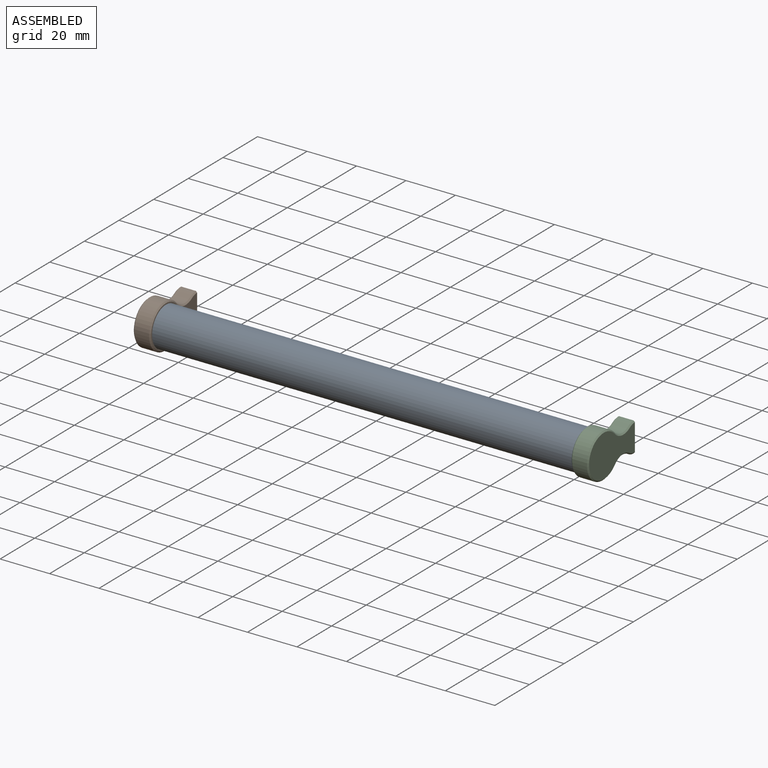
[diagram: assembled view]
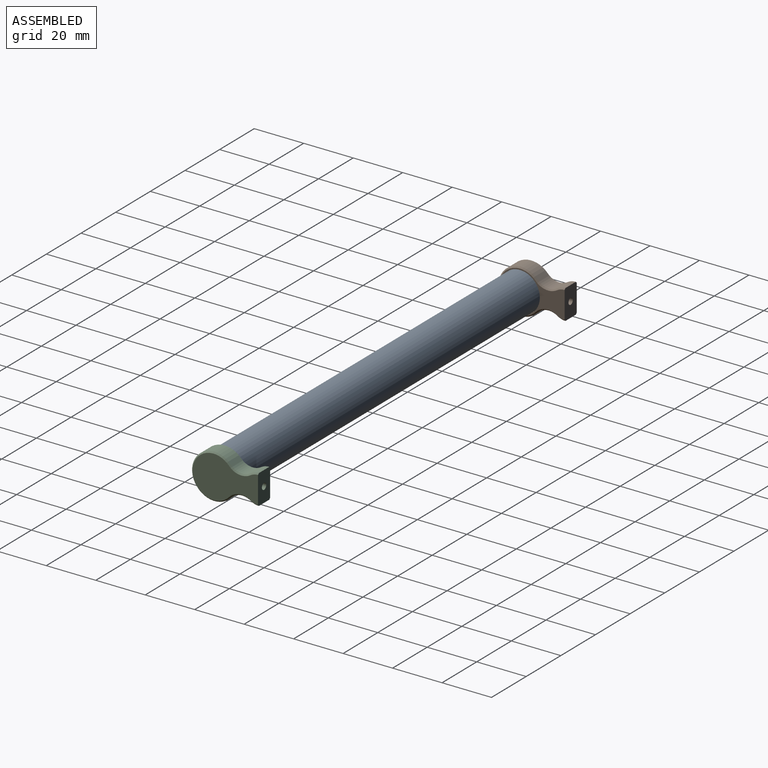
[diagram: assembled view, second angle]
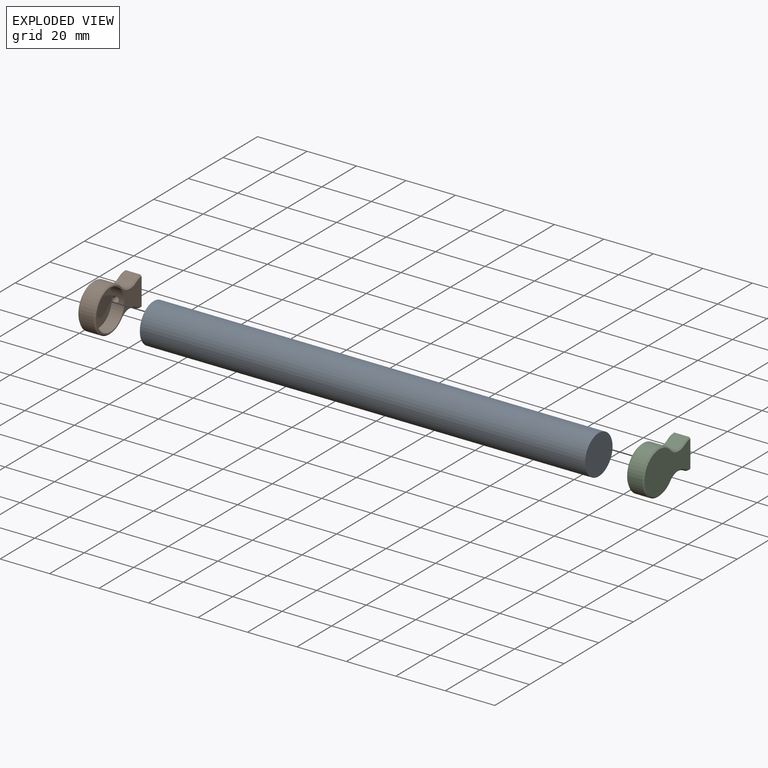
[diagram: exploded view]
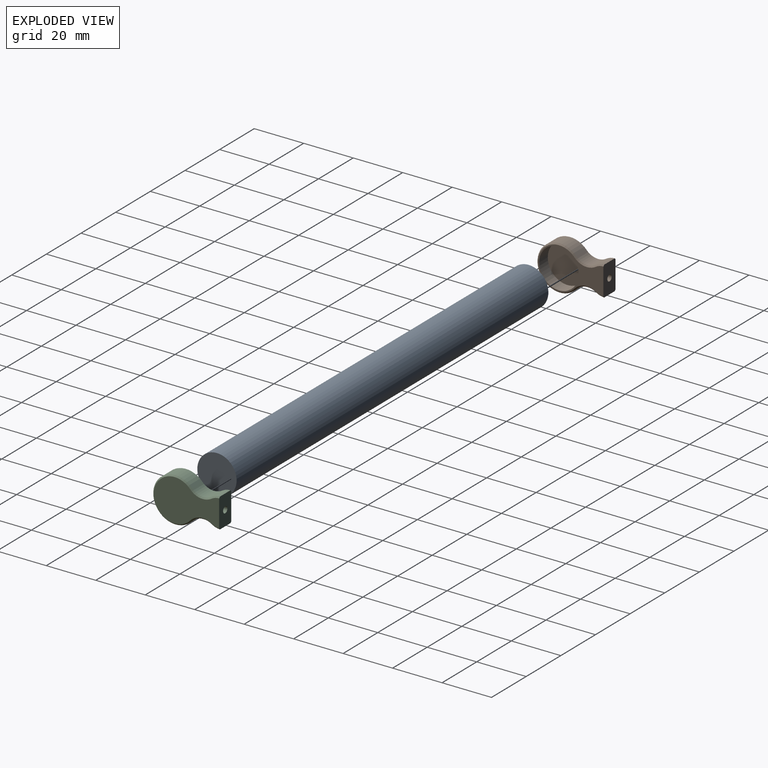
[diagram: exploded view, second angle]
ASSEMBLY  parts=3 mates=2
PART A: 3 faces, bbox 180x15.9x15.9 mm
  f0: plane 15.9x15.9mm, normal (1,0,0), area 198.6mm2, adj f1
  f1: cylinder r=7.95mm len=180mm, axis (1,0,0), area 8991.2mm2, adj f0,f2
  f2: plane 15.9x15.9mm, normal (-1,0,0), area 198.6mm2, adj f1
PART B: 21 faces, bbox 7x18x27 mm
  f0: cylinder r=8mm len=16mm, axis (1,0,0), area 246.4mm2, adj f7,f9,f10
  f1: cylinder r=9mm len=18mm, axis (-1,0,0), area 259.7mm2, adj f2,f6,f13,f18
  f2: cylinder r=6.25mm len=8.05mm, axis (-1,0,0), area 53mm2, adj f1,f3,f12,f17
  f3: cylinder r=6mm len=6mm, axis (-1,0,0), area 20.9mm2, adj f2,f4,f11,f16
  f4: plane 12x7mm, normal (0,0,-1), area 78.6mm2, adj f3,f5,f7,f8,f10,f11,f15,f16
  f5: cylinder r=6mm len=6mm, axis (-1,0,0), area 20.9mm2, adj f4,f6,f15,f20
  f6: cylinder r=6.25mm len=8.05mm, axis (-1,0,0), area 53mm2, adj f1,f5,f14,f19
  f7: plane 26.5x17mm, normal (1,0,0), area 110.3mm2, adj f0,f4,f16,f17,f18,f19,f20
  f8: plane 26.5x17mm, normal (-1,0,0), area 311.4mm2, adj f4,f11,f12,f13,f14,f15
  f9: plane 16x16mm, normal (1,0,0), area 201.1mm2, adj f0
  f10: cylinder r=1.25mm len=10.1mm, axis (0,0,-1), area 78.9mm2, adj f0,f4
  f11: cone r=6mm half-angle=45deg, axis (1,0,0), area 2.4mm2, adj f3,f4,f8,f12
  f12: cone r=6.75mm half-angle=45deg, axis (-1,0,0), area 6.5mm2, adj f2,f8,f11,f13
  f13: cone r=9mm half-angle=45deg, axis (1,0,0), area 29.8mm2, adj f1,f8,f12,f14
  f14: cone r=6.75mm half-angle=45deg, axis (-1,0,0), area 6.5mm2, adj f6,f8,f13,f15
  f15: cone r=5.5mm half-angle=45deg, axis (1,0,0), area 2.4mm2, adj f4,f5,f8,f14
  f16: cone r=5.5mm half-angle=45deg, axis (-1,0,0), area 2.4mm2, adj f3,f4,f7,f17
  f17: cone r=6.25mm half-angle=45deg, axis (1,0,0), area 6.5mm2, adj f2,f7,f16,f18
  f18: cone r=8.5mm half-angle=45deg, axis (-1,0,0), area 29.8mm2, adj f1,f7,f17,f19
  f19: cone r=6.25mm half-angle=45deg, axis (1,0,0), area 6.5mm2, adj f6,f7,f18,f20
  f20: cone r=6mm half-angle=45deg, axis (-1,0,0), area 2.4mm2, adj f4,f5,f7,f19
PART C: same geometry as B
PLACE A at identity fixed
PLACE B rot(axis=(1,0,0),90deg) t=(-88.5,0,0)mm
PLACE C rot(axis=(0,-0.71,0.71),180deg) t=(88.5,0,0)mm
MATE fastened A.f1 <-> C.f0  axis (1,0,0) through (90,0,0)mm
MATE fastened A.f1 <-> B.f0  axis (-1,0,0) through (-90,0,0)mm
